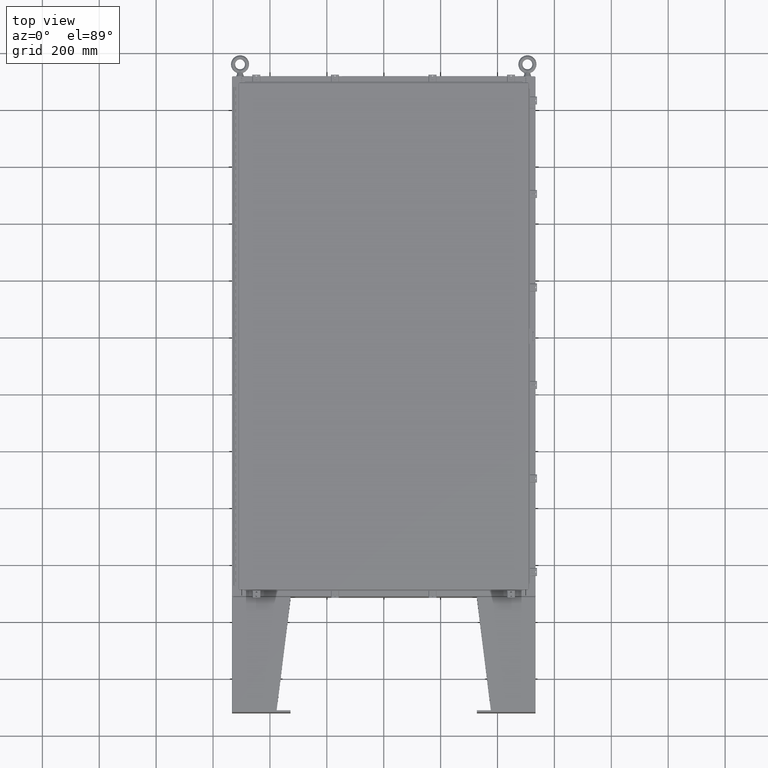
[diagram: clean part render]
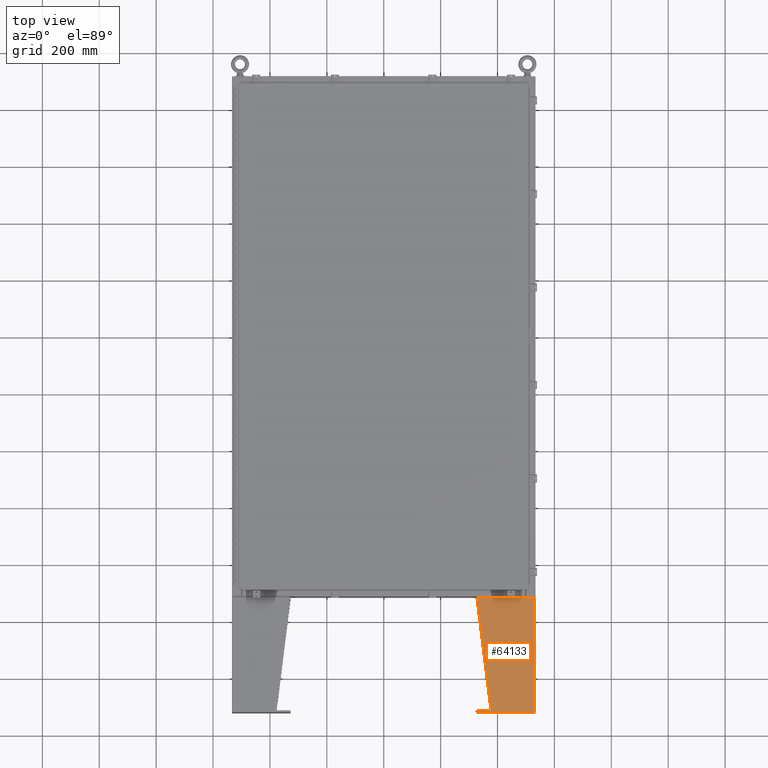
[diagram: same view with one face highlighted and labeled with its STEP entity id]
A machine part, top view. The second image highlights one B-rep face of the part: STEP entity #64133.
In plain terms, the highlighted planar face has unit normal (-0, -0, -1).
Its self-contained STEP definition (entity closure, byte-faithful):
#6745 = CARTESIAN_POINT ( 'NONE',  ( 6.000000000000022200, -7.749999999999999100, 6.052216497445950700 ) ) ;
#8465 = VECTOR ( 'NONE', #10039, 39.37007874015748100 ) ;
#9411 = DIRECTION ( 'NONE',  ( 0.0000000000000000000, -1.000000000000000000, 0.0000000000000000000 ) ) ;
#10039 = DIRECTION ( 'NONE',  ( 4.399772607369798900E-016, 0.9922942345449394800, 0.1239038017531047700 ) ) ;
#13704 = VERTEX_POINT ( 'NONE', #73054 ) ;
#17415 = EDGE_CURVE ( 'NONE', #55412, #13704, #40048, .T. ) ;
#17631 = CARTESIAN_POINT ( 'NONE',  ( 6.000000000000013300, 7.857000000000001100, 0.03900000000001561900 ) ) ;
#17835 = VERTEX_POINT ( 'NONE', #23177 ) ;
#18978 = DIRECTION ( 'NONE',  ( 3.550958521948298200E-015, 0.0000000000000000000, 1.000000000000000000 ) ) ;
#20996 = ORIENTED_EDGE ( 'NONE', *, *, #55981, .T. ) ;
#21209 = ORIENTED_EDGE ( 'NONE', *, *, #46454, .T. ) ;
#22342 = CARTESIAN_POINT ( 'NONE',  ( 6.000000000000029300, -7.749999999999999100, 8.001000000000015400 ) ) ;
#22348 = LINE ( 'NONE', #42081, #65968 ) ;
#23177 = CARTESIAN_POINT ( 'NONE',  ( 6.000000000000000900, -7.999999999999993800, 0.03899999999999890400 ) ) ;
#24353 = EDGE_CURVE ( 'NONE', #34175, #55412, #28372, .T. ) ;
#26224 = LINE ( 'NONE', #30147, #38333 ) ;
#26861 = LINE ( 'NONE', #17631, #56569 ) ;
#27493 = CARTESIAN_POINT ( 'NONE',  ( 6.000000000000029300, -7.999999999999999100, 8.001000000000015400 ) ) ;
#28372 = LINE ( 'NONE', #22342, #44177 ) ;
#29476 = AXIS2_PLACEMENT_3D ( 'NONE', #30736, #54570, #18978 ) ;
#30147 = CARTESIAN_POINT ( 'NONE',  ( 5.999999999999999100, -7.999999999999999100, 0.03900000000001453000 ) ) ;
#30736 = CARTESIAN_POINT ( 'NONE',  ( 6.000000000000029300, -7.999999999999999100, 8.001000000000015400 ) ) ;
#34175 = VERTEX_POINT ( 'NONE', #69717 ) ;
#34859 = LINE ( 'NONE', #74423, #48760 ) ;
#36142 = ORIENTED_EDGE ( 'NONE', *, *, #48904, .F. ) ;
#38333 = VECTOR ( 'NONE', #65878, 39.37007874015748100 ) ;
#40048 = LINE ( 'NONE', #6745, #8465 ) ;
#41368 = DIRECTION ( 'NONE',  ( 0.0000000000000000000, 0.0000000000000000000, 1.000000000000000000 ) ) ;
#41558 = EDGE_LOOP ( 'NONE', ( #74863, #20996, #21209, #36142, #64787, #51378 ) ) ;
#42081 = CARTESIAN_POINT ( 'NONE',  ( 6.000000000000029300, -7.999999999999999100, 8.001000000000015400 ) ) ;
#44177 = VECTOR ( 'NONE', #69553, 39.37007874015748100 ) ;
#45265 = VERTEX_POINT ( 'NONE', #27493 ) ;
#46454 = EDGE_CURVE ( 'NONE', #45265, #17835, #22348, .T. ) ;
#46833 = CARTESIAN_POINT ( 'NONE',  ( 6.000000000000013300, 7.857000000000001100, 0.03900000000001453000 ) ) ;
#47631 = EDGE_CURVE ( 'NONE', #68276, #13704, #26861, .T. ) ;
#48626 = PLANE ( 'NONE',  #29476 ) ;
#48760 = VECTOR ( 'NONE', #9411, 39.37007874015748100 ) ;
#48904 = EDGE_CURVE ( 'NONE', #68276, #17835, #26224, .T. ) ;
#51378 = ORIENTED_EDGE ( 'NONE', *, *, #17415, .F. ) ;
#52964 = FACE_OUTER_BOUND ( 'NONE', #41558, .T. ) ;
#54570 = DIRECTION ( 'NONE',  ( -1.000000000000000000, 0.0000000000000000000, 3.550958521948298200E-015 ) ) ;
#55412 = VERTEX_POINT ( 'NONE', #76561 ) ;
#55981 = EDGE_CURVE ( 'NONE', #34175, #45265, #34859, .T. ) ;
#56569 = VECTOR ( 'NONE', #41368, 39.37007874015748100 ) ;
#64133 = ADVANCED_FACE ( 'NONE', ( #52964 ), #48626, .F. ) ;
#64787 = ORIENTED_EDGE ( 'NONE', *, *, #47631, .T. ) ;
#65842 = DIRECTION ( 'NONE',  ( -3.550958521948298200E-015, 0.0000000000000000000, -1.000000000000000000 ) ) ;
#65878 = DIRECTION ( 'NONE',  ( -0.0000000000000000000, -1.000000000000000000, 0.0000000000000000000 ) ) ;
#65968 = VECTOR ( 'NONE', #65842, 39.37007874015748100 ) ;
#68276 = VERTEX_POINT ( 'NONE', #46833 ) ;
#69553 = DIRECTION ( 'NONE',  ( -3.550958521948298200E-015, -0.0000000000000000000, -1.000000000000000000 ) ) ;
#69717 = CARTESIAN_POINT ( 'NONE',  ( 6.000000000000029300, -7.749999999999999100, 8.001000000000031400 ) ) ;
#73054 = CARTESIAN_POINT ( 'NONE',  ( 6.000000000000013300, 7.857000000000001100, 8.001000000000013700 ) ) ;
#74423 = CARTESIAN_POINT ( 'NONE',  ( 6.000000000000029300, -7.999999999999999100, 8.001000000000015400 ) ) ;
#74863 = ORIENTED_EDGE ( 'NONE', *, *, #24353, .F. ) ;
#76561 = CARTESIAN_POINT ( 'NONE',  ( 6.000000000000021300, -7.749999999999999100, 6.052216497445950700 ) ) ;